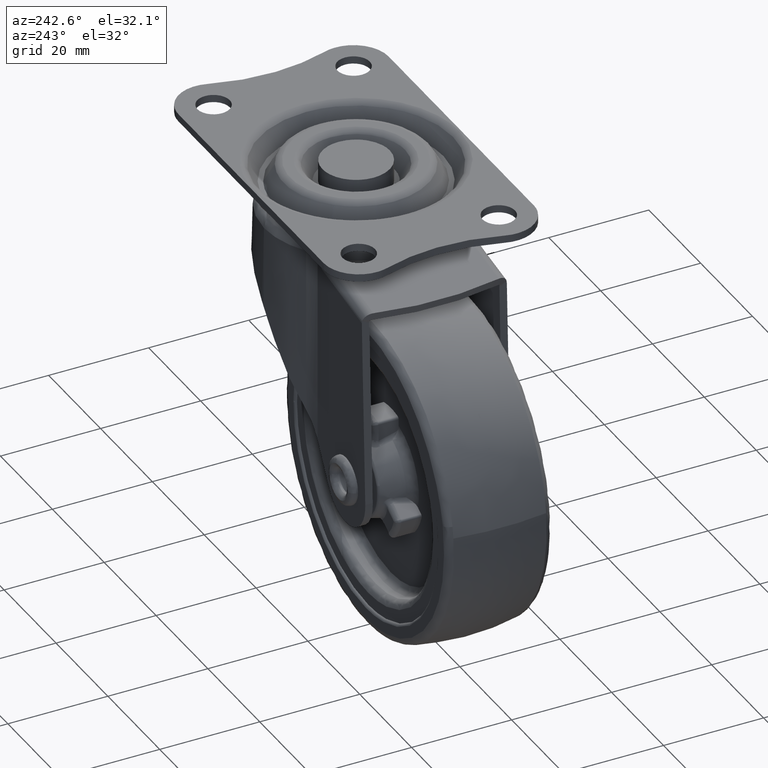
[diagram: clean part render]
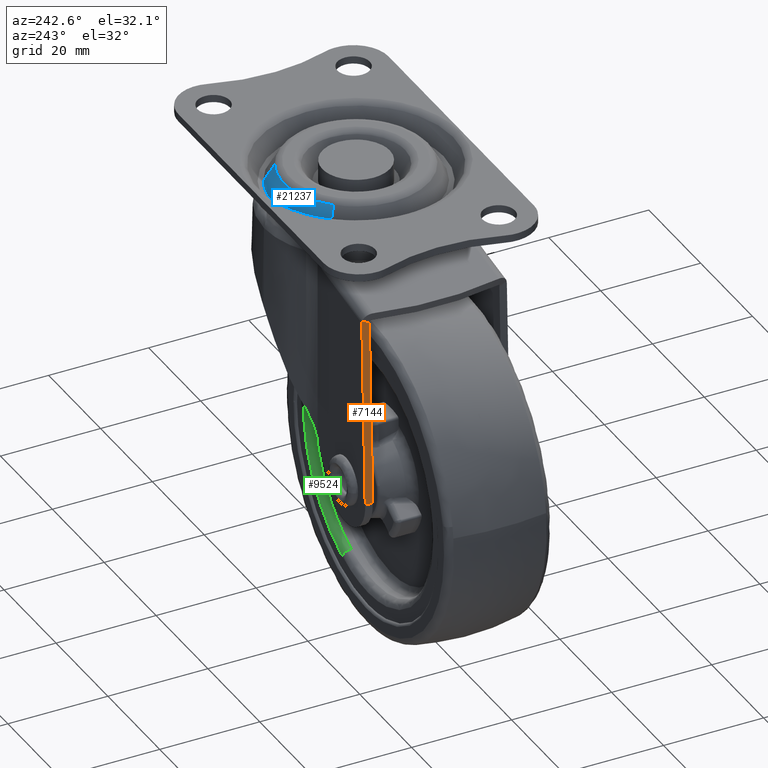
[diagram: same view with three faces highlighted in distinct colors, each labeled with its STEP entity id]
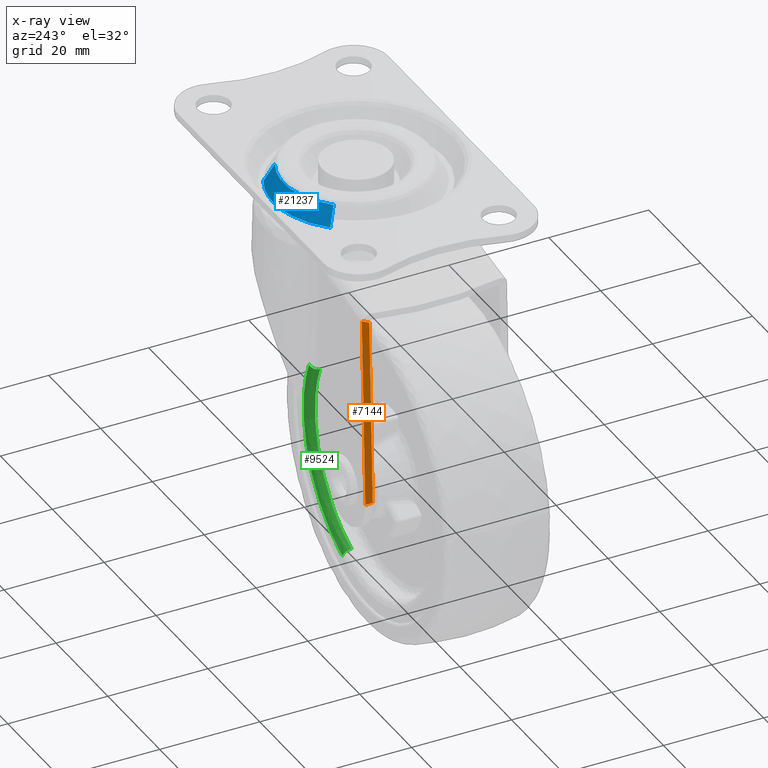
[diagram: x-ray of the same camera — body ghosted, the three highlighted faces saturated]
A machine part, auxiliary view with three faces highlighted in distinct colors.
The next image is the same camera in x-ray (body ghosted, the three faces saturated) — at least one of them is partly hidden behind the body in this view.
Their STEP definitions:

[orange] entity #7144 — the highlighted face is a freeform B-spline surface patch.
#3069=CARTESIAN_POINT('',(-30.180267597156799,13.0,-12.111724361901841));
#3070=VERTEX_POINT('',#3069);
#3095=CARTESIAN_POINT('',(-30.153724038603201,14.460125256013701,-11.364427591650200));
#3096=VERTEX_POINT('',#3095);
#3105=CARTESIAN_POINT('',(-30.180267597156799,13.0,-12.111724361901841));
#3106=CARTESIAN_POINT('',(-30.164483411720930,13.911292044579310,-11.667342694934600));
#3107=CARTESIAN_POINT('',(-30.153724038603201,14.460125256013701,-11.364427591650200));
#3108=QUASI_UNIFORM_CURVE('',2,(#3105,#3106,#3107),.UNSPECIFIED.,.F.,.U.);
#3109=EDGE_CURVE('',#3070,#3096,#3108,.T.);
#4469=CARTESIAN_POINT('',(-30.168149422949352,14.500014999999999,-11.770554114201261));
#4470=VERTEX_POINT('',#4469);
#4476=CARTESIAN_POINT('',(-30.153724038603201,14.460125256013701,-11.364427591650200));
#4477=CARTESIAN_POINT('',(-30.158470678599720,14.486678059447289,-11.498062602635841));
#4478=CARTESIAN_POINT('',(-30.163310010087368,14.500066837098810,-11.634307212929849));
#4479=CARTESIAN_POINT('',(-30.168149422949352,14.500014999999999,-11.770554114201261));
#4480=B_SPLINE_CURVE_WITH_KNOTS('',3,(#4476,#4477,#4478,#4479),.UNSPECIFIED.,.F.,.U.,(4,4),(4.826503E-009,0.409001922040454),.UNSPECIFIED.);
#4481=EDGE_CURVE('',#3096,#4470,#4480,.T.);
#5948=CARTESIAN_POINT('',(-30.630881147754650,13.0,-24.798118701726949));
#5949=VERTEX_POINT('',#5948);
#5950=CARTESIAN_POINT('',(-30.180267597156799,13.0,-12.111724361901841));
#5951=CARTESIAN_POINT('',(-30.630881147754650,13.0,-24.798118701726949));
#5952=QUASI_UNIFORM_CURVE('',1,(#5950,#5951),.UNSPECIFIED.,.F.,.U.);
#5953=EDGE_CURVE('',#3070,#5949,#5952,.T.);
#5955=CARTESIAN_POINT('',(-31.495269806296999,13.0,-49.133772546533599));
#5956=VERTEX_POINT('',#5955);
#5957=CARTESIAN_POINT('',(-30.630881147754650,13.0,-24.798118701726949));
#5958=CARTESIAN_POINT('',(-31.495269806296999,13.0,-49.133772546533599));
#5959=QUASI_UNIFORM_CURVE('',1,(#5957,#5958),.UNSPECIFIED.,.F.,.U.);
#5960=EDGE_CURVE('',#5949,#5956,#5959,.T.);
#7053=CARTESIAN_POINT('',(-31.495273444506651,14.500014999999980,-49.133772546533599));
#7054=VERTEX_POINT('',#7053);
#7074=CARTESIAN_POINT('',(-30.655919629697252,14.500014999999999,-25.503042144825649));
#7075=VERTEX_POINT('',#7074);
#7076=CARTESIAN_POINT('',(-30.655919629697252,14.500014999999999,-25.503042144825649));
#7077=CARTESIAN_POINT('',(-31.495273444506651,14.500014999999980,-49.133772546533599));
#7078=QUASI_UNIFORM_CURVE('',1,(#7076,#7077),.UNSPECIFIED.,.F.,.U.);
#7079=EDGE_CURVE('',#7075,#7054,#7078,.T.);
#7081=CARTESIAN_POINT('',(-30.168149422949352,14.500014999999999,-11.770554114201261));
#7082=CARTESIAN_POINT('',(-30.655919629697252,14.500014999999999,-25.503042144825649));
#7083=QUASI_UNIFORM_CURVE('',1,(#7081,#7082),.UNSPECIFIED.,.F.,.U.);
#7084=EDGE_CURVE('',#4470,#7075,#7083,.T.);
#7126=CARTESIAN_POINT('',(-30.086713829878150,12.925074242939100,-9.477848877911328));
#7127=CARTESIAN_POINT('',(-31.562280055588388,12.925074242939100,-51.020352402389612));
#7128=CARTESIAN_POINT('',(-30.086713829878150,14.574941011873300,-9.477848877911328));
#7129=CARTESIAN_POINT('',(-31.562280055588388,14.574941011873300,-51.020352402389612));
#7130=B_SPLINE_SURFACE_WITH_KNOTS('',1,1,((#7126,#7128),(#7127,#7129)),.UNSPECIFIED.,.F.,.F.,.U.,(2,2),(2,2),(0.0,41.568700903056218),(0.041708328993991,0.958291812567040),.UNSPECIFIED.);
#7131=ORIENTED_EDGE('',*,*,#5953,.F.);
#7132=ORIENTED_EDGE('',*,*,#3109,.T.);
#7133=ORIENTED_EDGE('',*,*,#4481,.T.);
#7134=ORIENTED_EDGE('',*,*,#7084,.T.);
#7135=ORIENTED_EDGE('',*,*,#7079,.T.);
#7136=CARTESIAN_POINT('',(-31.495273444506651,14.500014999999980,-49.133772546533599));
#7137=CARTESIAN_POINT('',(-31.495269806296999,13.0,-49.133772546533599));
#7138=QUASI_UNIFORM_CURVE('',1,(#7136,#7137),.UNSPECIFIED.,.F.,.U.);
#7139=EDGE_CURVE('',#7054,#5956,#7138,.T.);
#7140=ORIENTED_EDGE('',*,*,#7139,.T.);
#7141=ORIENTED_EDGE('',*,*,#5960,.F.);
#7142=EDGE_LOOP('',(#7131,#7132,#7133,#7134,#7135,#7140,#7141));
#7143=FACE_OUTER_BOUND('',#7142,.T.);
#7144=ADVANCED_FACE('',(#7143),#7130,.F.);

[blue] entity #21237 — the highlighted face is a freeform B-spline surface patch.
#21037=CARTESIAN_POINT('',(6.428251837119761,12.941863865120750,0.750000000246418));
#21038=VERTEX_POINT('',#21037);
#21095=CARTESIAN_POINT('',(-10.481954876562760,9.947003767762336,0.749999999921353));
#21096=VERTEX_POINT('',#21095);
#21107=CARTESIAN_POINT('',(-11.968676694708330,11.357850093744361,-2.799999035495990));
#21108=VERTEX_POINT('',#21107);
#21109=CARTESIAN_POINT('',(-10.481954876562760,9.947003767762336,0.749999999921353));
#21110=CARTESIAN_POINT('',(-11.968676694708330,11.357850093744361,-2.799999035495990));
#21111=QUASI_UNIFORM_CURVE('',1,(#21109,#21110),.UNSPECIFIED.,.F.,.U.);
#21112=EDGE_CURVE('',#21096,#21108,#21111,.T.);
#21162=CARTESIAN_POINT('',(7.340011838692286,14.777491049151759,-2.799999402118451));
#21163=VERTEX_POINT('',#21162);
#21176=CARTESIAN_POINT('',(6.428251837119761,12.941863865120750,0.750000000246418));
#21177=CARTESIAN_POINT('',(7.340011838692286,14.777491049151759,-2.799999402118451));
#21178=QUASI_UNIFORM_CURVE('',1,(#21176,#21177),.UNSPECIFIED.,.F.,.U.);
#21179=EDGE_CURVE('',#21038,#21163,#21178,.T.);
#21184=CARTESIAN_POINT('',(-10.444786820196301,9.911732599256867,0.838749981472922));
#21185=CARTESIAN_POINT('',(-3.122037183469759,17.628300628847672,0.838749981472922));
#21186=CARTESIAN_POINT('',(6.405457842243658,12.895973195914952,0.838749981472922));
#21187=CARTESIAN_POINT('',(-12.006774379240399,11.394003446439180,-2.890967969933775));
#21188=CARTESIAN_POINT('',(-3.588928784361352,20.264561832006606,-2.890967969933774));
#21189=CARTESIAN_POINT('',(7.363375474436942,14.824528564305577,-2.890967969933775));
#21197=(BOUNDED_SURFACE()B_SPLINE_SURFACE(2,1,((#21184,#21187),(#21185,#21188),(#21186,#21189)),.UNSPECIFIED.,.F.,.F.,.U.)B_SPLINE_SURFACE_WITH_KNOTS((3,3),(2,2),(0.0,21.790544911984689),(0.0,4.306707326492073),.UNSPECIFIED.)GEOMETRIC_REPRESENTATION_ITEM()RATIONAL_B_SPLINE_SURFACE(((1.0,1.0),(0.765685424949238,0.765685424949238),(0.906274169979695,0.906274169979695)))REPRESENTATION_ITEM('')SURFACE());
#21198=CARTESIAN_POINT('',(-10.481954876562760,9.947003767762336,0.749999999921353));
#21199=CARTESIAN_POINT('',(-9.855706465304090,10.607096484579481,0.749999999924187));
#21200=CARTESIAN_POINT('',(-8.731682147474009,11.586979005361860,0.749999999932707));
#21201=CARTESIAN_POINT('',(-6.743815181547907,12.841734811476870,0.749999999955792));
#21202=CARTESIAN_POINT('',(-4.718859680812328,13.731227479400260,0.749999999985819));
#21203=CARTESIAN_POINT('',(-2.155446504176145,14.371912554963750,0.750000000031968));
#21204=CARTESIAN_POINT('',(0.151449812898149,14.512681151050259,0.750000000080799));
#21205=CARTESIAN_POINT('',(2.442512944572192,14.287069517202450,0.750000000135427));
#21206=CARTESIAN_POINT('',(4.406000483081977,13.822492580010870,0.750000000186775));
#21207=CARTESIAN_POINT('',(5.784921990296157,13.261441571385820,0.750000000226793));
#21208=CARTESIAN_POINT('',(6.428251837119761,12.941863865120750,0.750000000246418));
#21209=B_SPLINE_CURVE_WITH_KNOTS('',3,(#21198,#21199,#21200,#21201,#21202,#21203,#21204,#21205,#21206,#21207,#21208),.UNSPECIFIED.,.F.,.U.,(4,1,1,1,1,1,1,1,4),(0.000000059206592,2.729669733872303,4.453689213868053,7.039708277259150,9.338357121262911,12.355385701397610,13.935742826380009,16.234423810747231,18.389431974292378),.UNSPECIFIED.);
#21210=EDGE_CURVE('',#21096,#21038,#21209,.T.);
#21211=ORIENTED_EDGE('',*,*,#21210,.T.);
#21212=ORIENTED_EDGE('',*,*,#21179,.T.);
#21213=CARTESIAN_POINT('',(0.000001886277341,16.499999999999890,-2.799999239411660));
#21214=VERTEX_POINT('',#21213);
#21215=CARTESIAN_POINT('',(0.000001886277341,16.499999999999890,-2.799999239411660));
#21216=CARTESIAN_POINT('',(0.950832564545628,16.500088474590470,-2.799999260488819));
#21217=CARTESIAN_POINT('',(2.535507985058455,16.362618350700352,-2.799999295616507));
#21218=CARTESIAN_POINT('',(5.008083336928146,15.782361105787301,-2.799999350426326));
#21219=CARTESIAN_POINT('',(6.488481998369744,15.200548457719970,-2.799999383242509));
#21220=CARTESIAN_POINT('',(7.340011838692286,14.777491049151759,-2.799999402118451));
#21221=B_SPLINE_CURVE_WITH_KNOTS('',3,(#21215,#21216,#21217,#21218,#21219,#21220),.UNSPECIFIED.,.F.,.U.,(4,1,1,4),(8.132439E-009,2.852479422822913,4.754132017173268,7.606611431869365),.UNSPECIFIED.);
#21222=EDGE_CURVE('',#21214,#21163,#21221,.T.);
#21223=ORIENTED_EDGE('',*,*,#21222,.F.);
#21224=CARTESIAN_POINT('',(-11.968676694708330,11.357850093744361,-2.799999035495990));
#21225=CARTESIAN_POINT('',(-11.296597437791361,12.066178911333219,-2.799999046946500));
#21226=CARTESIAN_POINT('',(-9.826200349577290,13.362998755642460,-2.799999071998307));
#21227=CARTESIAN_POINT('',(-7.132309515104824,14.997427791699611,-2.799999117895311));
#21228=CARTESIAN_POINT('',(-3.835839101006309,16.195844554635169,-2.799999174058748));
#21229=CARTESIAN_POINT('',(-1.325186673417583,16.500334790701480,-2.799999216833824));
#21230=CARTESIAN_POINT('',(0.000001886277341,16.499999999999890,-2.799999239411660));
#21231=B_SPLINE_CURVE_WITH_KNOTS('',3,(#21224,#21225,#21226,#21227,#21228,#21229,#21230),.UNSPECIFIED.,.F.,.U.,(4,1,1,1,4),(0.000000023410857,2.929292071859059,5.858610010652032,9.415587441446229,13.391062763756620),.UNSPECIFIED.);
#21232=EDGE_CURVE('',#21108,#21214,#21231,.T.);
#21233=ORIENTED_EDGE('',*,*,#21232,.F.);
#21234=ORIENTED_EDGE('',*,*,#21112,.F.);
#21235=EDGE_LOOP('',(#21211,#21212,#21223,#21233,#21234));
#21236=FACE_OUTER_BOUND('',#21235,.T.);
#21237=ADVANCED_FACE('',(#21236),#21197,.T.);

[green] entity #9524 — the highlighted face is a freeform B-spline surface patch.
#7705=CARTESIAN_POINT('',(-2.491832443408833,8.499999999511989,-38.531694760728037));
#7706=VERTEX_POINT('',#7705);
#7721=CARTESIAN_POINT('',(-6.875228258392815,8.499999999835385,-64.093230379634619));
#7722=VERTEX_POINT('',#7721);
#7723=CARTESIAN_POINT('',(-6.875228258392815,8.499999999835385,-64.093230379634619));
#7724=CARTESIAN_POINT('',(-5.797178170903250,8.499999999872216,-62.946421612683523));
#7725=CARTESIAN_POINT('',(-4.135462372329210,8.499999999919917,-60.777439242716667));
#7726=CARTESIAN_POINT('',(-2.378594212812845,8.499999999945908,-57.405770495196883));
#7727=CARTESIAN_POINT('',(-1.401481128807363,8.499999999940071,-54.632727355794138));
#7728=CARTESIAN_POINT('',(-0.779348010963823,8.499999999914612,-51.909811465965412));
#7729=CARTESIAN_POINT('',(-0.417141402525395,8.499999999864825,-48.776331378246908));
#7730=CARTESIAN_POINT('',(-0.558737084642556,8.499999999776861,-45.258940312304823));
#7731=CARTESIAN_POINT('',(-1.285666533415506,8.499999999653472,-41.674619378506641));
#7732=CARTESIAN_POINT('',(-2.030581600538269,8.499999999562537,-39.579341557396653));
#7733=CARTESIAN_POINT('',(-2.491832443408833,8.499999999511989,-38.531694760728037));
#7734=B_SPLINE_CURVE_WITH_KNOTS('',3,(#7723,#7724,#7725,#7726,#7727,#7728,#7729,#7730,#7731,#7732,#7733),.UNSPECIFIED.,.F.,.U.,(4,1,1,1,1,1,1,1,4),(0.000000017098266,4.721849111174979,8.155950348316125,11.375419479051841,13.521701267170339,16.526496033164850,20.819116687371469,24.038573525939221,27.472648499923750),.UNSPECIFIED.);
#7735=EDGE_CURVE('',#7722,#7706,#7734,.T.);
#7777=CARTESIAN_POINT('',(-14.531698760728039,8.499999999511989,-69.508163556591171));
#7778=VERTEX_POINT('',#7777);
#7779=CARTESIAN_POINT('',(-14.531698760728039,8.499999999511989,-69.508163556591171));
#7780=CARTESIAN_POINT('',(-13.136458075952589,8.499999999579325,-68.894148962309231));
#7781=CARTESIAN_POINT('',(-10.380123603401040,8.499999999704912,-67.344772605657440));
#7782=CARTESIAN_POINT('',(-7.986312012617953,8.499999999797431,-65.275889496308523));
#7783=CARTESIAN_POINT('',(-6.875228258392815,8.499999999835385,-64.093230379634619));
#7784=B_SPLINE_CURVE_WITH_KNOTS('',3,(#7779,#7780,#7781,#7782,#7783),.UNSPECIFIED.,.F.,.U.,(4,1,4),(5.132403E-009,4.573081208071416,9.441176161817586),.UNSPECIFIED.);
#7785=EDGE_CURVE('',#7778,#7722,#7784,.T.);
#9386=CARTESIAN_POINT('',(-13.927339109460521,10.0,-70.881025309749347));
#9387=VERTEX_POINT('',#9386);
#9388=CARTESIAN_POINT('',(-14.531698760728039,8.499999999511989,-69.508163556591171));
#9389=CARTESIAN_POINT('',(-14.531751460692769,8.671828672110717,-69.508043843507451));
#9390=CARTESIAN_POINT('',(-14.513652091371650,8.929442152218178,-69.549158322039872));
#9391=CARTESIAN_POINT('',(-14.449579638387990,9.276615944109897,-69.694705133374583));
#9392=CARTESIAN_POINT('',(-14.372426847784521,9.534823469666833,-69.869965204344624));
#9393=CARTESIAN_POINT('',(-14.262037055009040,9.765343790359163,-70.120726359759672));
#9394=CARTESIAN_POINT('',(-14.115202234865420,9.948829308758320,-70.454275940998841));
#9395=CARTESIAN_POINT('',(-13.996566207352600,10.000115613896780,-70.723769220978014));
#9396=CARTESIAN_POINT('',(-13.927339109460521,10.0,-70.881025309749347));
#9397=B_SPLINE_CURVE_WITH_KNOTS('',3,(#9388,#9389,#9390,#9391,#9392,#9393,#9394,#9395,#9396),.UNSPECIFIED.,.F.,.U.,(4,1,1,1,1,1,4),(0.000000285944057,0.515429311136890,0.773160046873556,1.141351332573658,1.472636973218892,1.840826950407120,2.356253614177917),.UNSPECIFIED.);
#9398=EDGE_CURVE('',#7778,#9387,#9397,.T.);
#9448=CARTESIAN_POINT('',(-1.118970690250648,10.0,-37.927335109460529));
#9449=VERTEX_POINT('',#9448);
#9464=CARTESIAN_POINT('',(-2.491832443408833,8.499999999511989,-38.531694760728037));
#9465=CARTESIAN_POINT('',(-2.491942822296959,8.671821093115767,-38.531743351603687));
#9466=CARTESIAN_POINT('',(-2.444974888794260,8.966250124995836,-38.511067180944238));
#9467=CARTESIAN_POINT('',(-2.241561301407633,9.408155716053658,-38.421520681129067));
#9468=CARTESIAN_POINT('',(-1.950132778373000,9.726531275234954,-38.293228345687922));
#9469=CARTESIAN_POINT('',(-1.545704962362314,9.948812731531227,-38.115191589040158));
#9470=CARTESIAN_POINT('',(-1.276227148945732,10.000115854832311,-37.996562370200081));
#9471=CARTESIAN_POINT('',(-1.118970690250648,10.0,-37.927335109460529));
#9472=B_SPLINE_CURVE_WITH_KNOTS('',3,(#9464,#9465,#9466,#9467,#9468,#9469,#9470,#9471),.UNSPECIFIED.,.F.,.U.,(4,1,1,1,1,4),(0.000000285942211,0.515429311135240,0.883618588198973,1.472636973218233,1.840826950406757,2.356253614177941),.UNSPECIFIED.);
#9473=EDGE_CURVE('',#7706,#9449,#9472,.T.);
#9478=CARTESIAN_POINT('',(-14.529902271110368,8.384429258322099,-69.512244457563469));
#9479=CARTESIAN_POINT('',(6.982346186453095,8.384429258322101,-60.042146728673835));
#9480=CARTESIAN_POINT('',(-2.487751542436536,8.384429258322099,-38.529898271110376));
#9481=CARTESIAN_POINT('',(-14.536719679709327,8.603389666186615,-69.496758050578464));
#9482=CARTESIAN_POINT('',(6.960042370869124,8.603389666186617,-60.033477730287771));
#9483=CARTESIAN_POINT('',(-2.503237949421552,8.603389666186615,-38.536715679709332));
#9484=CARTESIAN_POINT('',(-14.517960531763601,8.818010664883083,-69.539371280453537));
#9485=CARTESIAN_POINT('',(7.021414748689939,8.818010664883083,-60.057331812217143));
#9486=CARTESIAN_POINT('',(-2.460624719546466,8.818010664883083,-38.517956531763602));
#9487=CARTESIAN_POINT('',(-14.406465766769147,10.093607929842266,-69.792642487883782));
#9488=CARTESIAN_POINT('',(7.386180721114619,10.093607929842262,-60.199108254652913));
#9489=CARTESIAN_POINT('',(-2.207353512116228,10.093607929842266,-38.406461766769162));
#9490=CARTESIAN_POINT('',(-13.882043811360070,9.995781212034769,-70.983917987284983));
#9491=CARTESIAN_POINT('',(9.101878175924911,9.995781212034769,-60.865961798645067));
#9492=CARTESIAN_POINT('',(-1.016078012715015,9.995781212034769,-37.882039811360087));
#9500=(BOUNDED_SURFACE()B_SPLINE_SURFACE(2,2,((#9478,#9481,#9484,#9487,#9490),(#9479,#9482,#9485,#9488,#9491),(#9480,#9483,#9486,#9489,#9492)),.UNSPECIFIED.,.F.,.F.,.U.)B_SPLINE_SURFACE_WITH_KNOTS((3,3),(3,2,3),(0.0,41.607622071441902),(0.0,0.483134006152049,2.727854450687058),.UNSPECIFIED.)GEOMETRIC_REPRESENTATION_ITEM()RATIONAL_B_SPLINE_SURFACE(((0.909306253946885,0.943516732819322,1.0,0.737569405175135,0.955938190748477),(0.642976618341179,0.667167079939518,0.707106781186548,0.521540327995067,0.675950377073448),(0.909306253946885,0.943516732819322,1.0,0.737569405175135,0.955938190748477)))REPRESENTATION_ITEM('')SURFACE());
#9501=ORIENTED_EDGE('',*,*,#7785,.T.);
#9502=ORIENTED_EDGE('',*,*,#7735,.T.);
#9503=ORIENTED_EDGE('',*,*,#9473,.T.);
#9504=CARTESIAN_POINT('',(-13.927339109460521,10.0,-70.881025309749347));
#9505=CARTESIAN_POINT('',(-12.616924182231250,9.999999999999995,-70.304288616547012));
#9506=CARTESIAN_POINT('',(-10.185694160427399,10.000000000000020,-68.974027283486649));
#9507=CARTESIAN_POINT('',(-7.282287350552172,9.999999999999957,-66.691382161212104));
#9508=CARTESIAN_POINT('',(-4.752323760714813,10.000000000000091,-64.079922841430218));
#9509=CARTESIAN_POINT('',(-2.874374518243869,9.999999999999846,-61.512296041482891));
#9510=CARTESIAN_POINT('',(-1.142696949737381,9.999999999999893,-58.315841617859377));
#9511=CARTESIAN_POINT('',(-0.035722744984362,10.000000000000171,-55.388367060367230));
#9512=CARTESIAN_POINT('',(0.677125094940032,9.999999999999909,-52.294887509755803));
#9513=CARTESIAN_POINT('',(1.054580573501404,9.999999999999700,-49.142325985058413));
#9514=CARTESIAN_POINT('',(0.993445265679731,10.000000000000179,-45.910491227669347));
#9515=CARTESIAN_POINT('',(0.368880385683036,10.000000000000160,-41.965146723378602));
#9516=CARTESIAN_POINT('',(-0.438869624838547,9.999999999999240,-39.471614227855731));
#9517=CARTESIAN_POINT('',(-1.118970690250648,10.0,-37.927335109460529));
#9518=B_SPLINE_CURVE_WITH_KNOTS('',3,(#9504,#9505,#9506,#9507,#9508,#9509,#9510,#9511,#9512,#9513,#9514,#9515,#9516,#9517),.UNSPECIFIED.,.F.,.U.,(4,1,1,1,1,1,1,1,1,1,1,4),(0.000000070953547,4.295136901597687,8.283507890619958,11.044686826299079,15.186442590199240,17.794213634638378,21.935944934413641,24.543726618615530,27.304889584188309,31.446658936478151,34.207835289566887,39.269969757133850),.UNSPECIFIED.);
#9519=EDGE_CURVE('',#9387,#9449,#9518,.T.);
#9520=ORIENTED_EDGE('',*,*,#9519,.F.);
#9521=ORIENTED_EDGE('',*,*,#9398,.F.);
#9522=EDGE_LOOP('',(#9501,#9502,#9503,#9520,#9521));
#9523=FACE_OUTER_BOUND('',#9522,.T.);
#9524=ADVANCED_FACE('',(#9523),#9500,.T.);